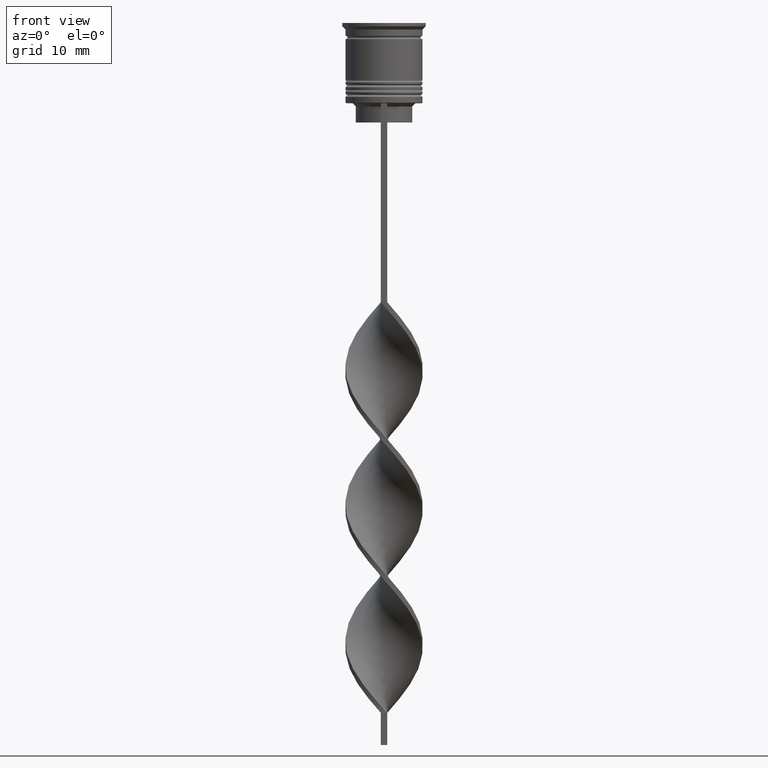
[diagram: clean part render]
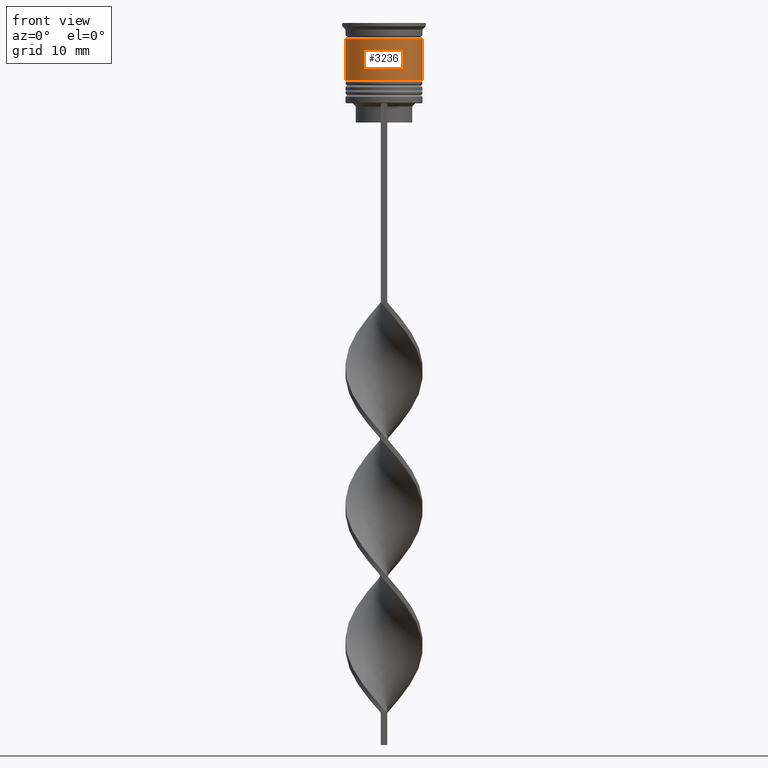
[diagram: same view with one face highlighted and labeled with its STEP entity id]
A machine part, front view. The second image highlights one B-rep face of the part: STEP entity #3236.
In plain terms, the highlighted cylindrical surface (partial cylindrical patch) has radius 6 mm, axis along (-0, -0, 1).
Its self-contained STEP definition (entity closure, byte-faithful):
#8 = DIRECTION ( 'NONE',  ( -0.000000000000000000, -0.000000000000000000, 1.000000000000000000 ) ) ;
#18 = VECTOR ( 'NONE', #2529, 1000.000000000000000 ) ;
#46 = VERTEX_POINT ( 'NONE', #2875 ) ;
#81 = CARTESIAN_POINT ( 'NONE',  ( 6.000000000000000000, 0.000000000000000000, 0.000000000000000000 ) ) ;
#155 = VERTEX_POINT ( 'NONE', #656 ) ;
#248 = EDGE_LOOP ( 'NONE', ( #2927, #3374, #646, #2730 ) ) ;
#251 = FACE_OUTER_BOUND ( 'NONE', #248, .T. ) ;
#333 = LINE ( 'NONE', #81, #18 ) ;
#496 = DIRECTION ( 'NONE',  ( -0.000000000000000000, -0.000000000000000000, 1.000000000000000000 ) ) ;
#510 = DIRECTION ( 'NONE',  ( -0.000000000000000000, -0.000000000000000000, 1.000000000000000000 ) ) ;
#532 = CARTESIAN_POINT ( 'NONE',  ( -6.000000000000001776, 7.347880794884121708E-16, -9.000000000000001776 ) ) ;
#646 = ORIENTED_EDGE ( 'NONE', *, *, #3277, .T. ) ;
#656 = CARTESIAN_POINT ( 'NONE',  ( 5.999999999999999112, 0.000000000000000000, -2.500000000000000444 ) ) ;
#825 = EDGE_CURVE ( 'NONE', #2393, #46, #2522, .T. ) ;
#988 = AXIS2_PLACEMENT_3D ( 'NONE', #1296, #496, #2749 ) ;
#1018 = CARTESIAN_POINT ( 'NONE',  ( 0.000000000000000000, 0.000000000000000000, -2.500000000000000444 ) ) ;
#1267 = AXIS2_PLACEMENT_3D ( 'NONE', #2777, #8, #1449 ) ;
#1294 = DIRECTION ( 'NONE',  ( 1.000000000000000000, 0.000000000000000000, 0.000000000000000000 ) ) ;
#1296 = CARTESIAN_POINT ( 'NONE',  ( 0.000000000000000000, 0.000000000000000000, 0.000000000000000000 ) ) ;
#1396 = EDGE_CURVE ( 'NONE', #1586, #155, #3153, .T. ) ;
#1449 = DIRECTION ( 'NONE',  ( 1.000000000000000000, 0.000000000000000000, 0.000000000000000000 ) ) ;
#1586 = VERTEX_POINT ( 'NONE', #3471 ) ;
#1759 = AXIS2_PLACEMENT_3D ( 'NONE', #1018, #510, #1294 ) ;
#1913 = EDGE_CURVE ( 'NONE', #2393, #1586, #3455, .T. ) ;
#2069 = DIRECTION ( 'NONE',  ( -0.000000000000000000, -0.000000000000000000, 1.000000000000000000 ) ) ;
#2083 = CARTESIAN_POINT ( 'NONE',  ( -6.000000000000000000, 7.347880794884119736E-16, 0.000000000000000000 ) ) ;
#2393 = VERTEX_POINT ( 'NONE', #532 ) ;
#2522 = CIRCLE ( 'NONE', #1267, 6.000000000000000888 ) ;
#2529 = DIRECTION ( 'NONE',  ( -0.000000000000000000, -0.000000000000000000, 1.000000000000000000 ) ) ;
#2635 = VECTOR ( 'NONE', #2069, 1000.000000000000000 ) ;
#2730 = ORIENTED_EDGE ( 'NONE', *, *, #1396, .F. ) ;
#2749 = DIRECTION ( 'NONE',  ( 1.000000000000000000, 0.000000000000000000, 0.000000000000000000 ) ) ;
#2777 = CARTESIAN_POINT ( 'NONE',  ( 0.000000000000000000, 0.000000000000000000, -9.000000000000001776 ) ) ;
#2875 = CARTESIAN_POINT ( 'NONE',  ( 6.000000000000000888, 0.000000000000000000, -9.000000000000001776 ) ) ;
#2927 = ORIENTED_EDGE ( 'NONE', *, *, #1913, .F. ) ;
#3019 = CYLINDRICAL_SURFACE ( 'NONE', #988, 6.000000000000000000 ) ;
#3153 = CIRCLE ( 'NONE', #1759, 5.999999999999999112 ) ;
#3236 = ADVANCED_FACE ( 'NONE', ( #251 ), #3019, .T. ) ;
#3277 = EDGE_CURVE ( 'NONE', #46, #155, #333, .T. ) ;
#3374 = ORIENTED_EDGE ( 'NONE', *, *, #825, .T. ) ;
#3455 = LINE ( 'NONE', #2083, #2635 ) ;
#3471 = CARTESIAN_POINT ( 'NONE',  ( -5.999999999999999112, 7.347880794884118750E-16, -2.500000000000000444 ) ) ;